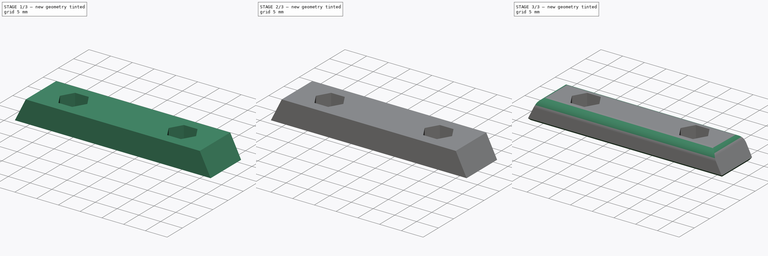
[diagram: build sequence overview — one tinted view per stage of 3, left to right]
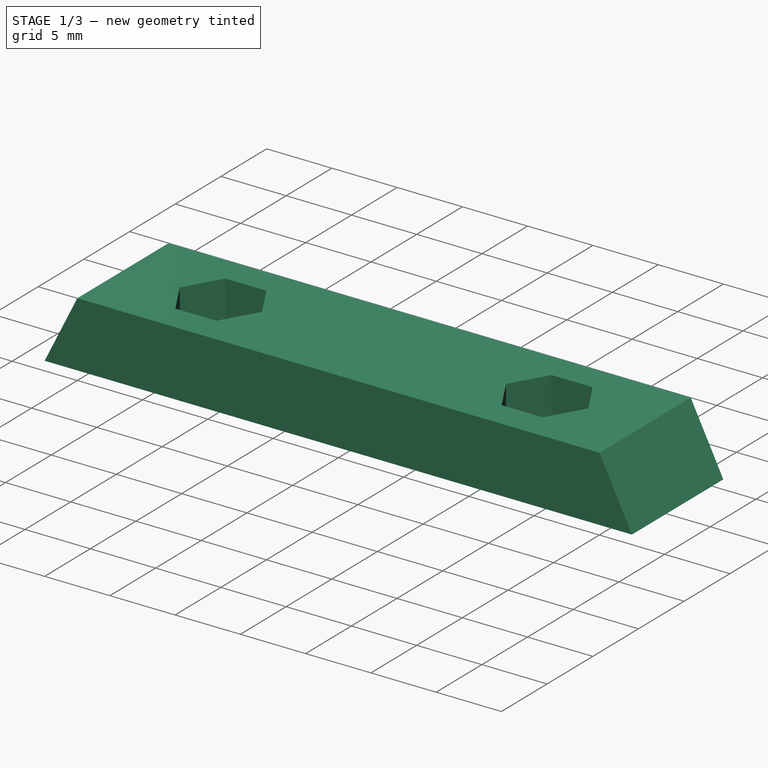
[diagram: stage 1 of 3 — iso view after this stage's code; geometry added in this stage tinted green]
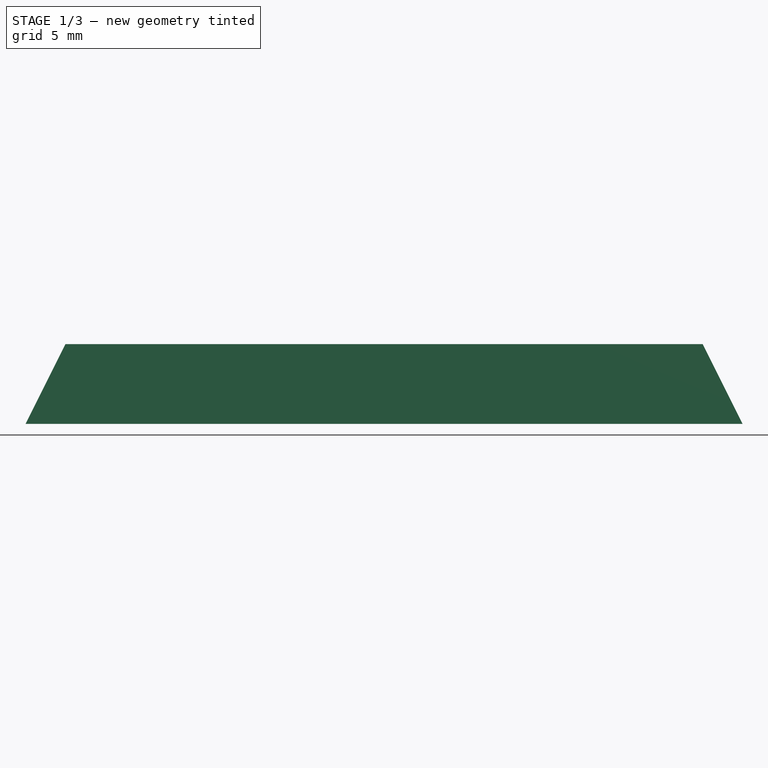
[diagram: stage 1 of 3 — front view after this stage's code; geometry added in this stage tinted green]
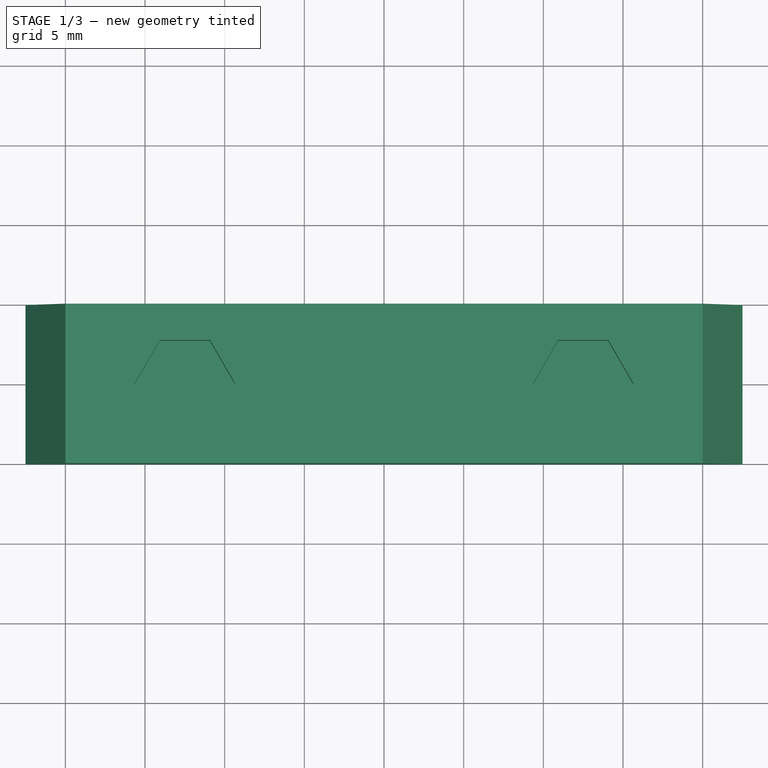
[diagram: stage 1 of 3 — top view after this stage's code; geometry added in this stage tinted green]
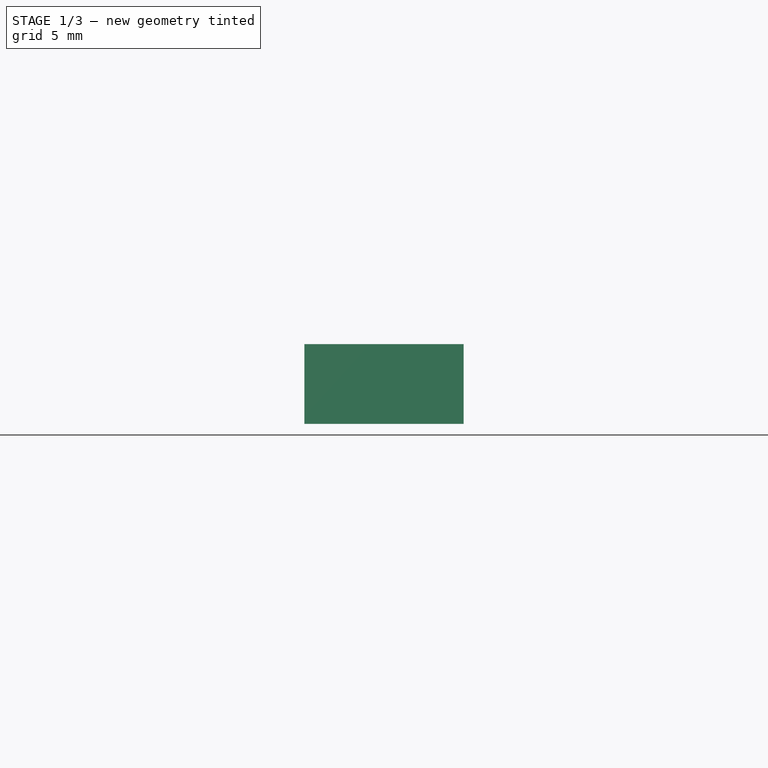
[diagram: stage 1 of 3 — right view after this stage's code; geometry added in this stage tinted green]
FCSTD DOCUMENT  (FreeCAD 0.16R6712 (Git))
Label: cacifo_trasera
License: CC-BY 3.0
LicenseURL: http://creativecommons.org/licenses/by/3.0/
objects: Sketcher::SketchObject×3, PartDesign::Pocket×2, PartDesign::Pad×1, PartDesign::Fillet×1, PartDesign::Chamfer×1
note: 11 computed .brp shape members not serialized (recipe doc carries the construction recipe); baked Part::Feature solids carry a one-line shape summary decoded from their .brp

FEATURE [Sketcher::SketchObject] Sketch
  Placement = pos=(0,0,0) rot=(1,0,0;1.5708rad)
  sketch-geometry (4):
    g0: LineSegment StartX=-22.5 StartY=0 StartZ=0 EndX=-20 EndY=5 EndZ=0
    g1: LineSegment StartX=-20 StartY=5 StartZ=0 EndX=20 EndY=5 EndZ=0
    g2: LineSegment StartX=20 StartY=5 StartZ=0 EndX=22.5 EndY=0 EndZ=0
    g3: LineSegment StartX=22.5 StartY=0 StartZ=0 EndX=-22.5 EndY=0 EndZ=0
  constraints (12):
    c: PointOnObject(g0,g-1)
    c: Coincident(g0,g1)
    c: Horizontal(g1)
    c: Coincident(g1,g2)
    c: Coincident(g2,g3)
    c: Coincident(g3,g0)
    c: Horizontal(g3)
    c: Symmetric(g0,g2,g-2)
    c: Symmetric(g0,g1,g-2)
    c: DistanceX(g3) = -45
    c: DistanceX(g1) = 40
    c: DistanceY(g-1,g0) = 5
FEATURE [PartDesign::Pad] Pad
  Length = 10
  Length2 = 100
  Midplane = true
  Placement = pos=(0,0,0) rot=(1,0,0;1.5708rad)
  Sketch = -> Sketch
  Type = 0
FEATURE [Sketcher::SketchObject] Sketch001
  Placement = pos=(0,0,5) rot=(0,0,1;3.14159rad)
  Support = -> Pad [Face2]
  sketch-geometry (14):
    g0: Circle [constr] CenterX=-12.5 CenterY=0 CenterZ=0 NormalX=0 NormalY=0 NormalZ=1 Radius=3.15
    g1: LineSegment StartX=-14.075 StartY=2.72798 StartZ=0 EndX=-10.925 EndY=2.72798 EndZ=0
    g2: LineSegment StartX=-10.925 StartY=2.72798 StartZ=0 EndX=-9.35 EndY=0 EndZ=0
    g3: LineSegment StartX=-9.35 StartY=0 StartZ=0 EndX=-10.925 EndY=-2.72798 EndZ=0
    g4: LineSegment StartX=-10.925 StartY=-2.72798 StartZ=0 EndX=-14.075 EndY=-2.72798 EndZ=0
    g5: LineSegment StartX=-14.075 StartY=-2.72798 StartZ=0 EndX=-15.65 EndY=0 EndZ=0
    g6: LineSegment StartX=-15.65 StartY=0 StartZ=0 EndX=-14.075 EndY=2.72798 EndZ=0
    g7: Circle [constr] CenterX=12.5 CenterY=0 CenterZ=0 NormalX=0 NormalY=0 NormalZ=1 Radius=3.15
    g8: LineSegment StartX=10.925 StartY=2.72798 StartZ=0 EndX=14.075 EndY=2.72798 EndZ=0
    g9: LineSegment StartX=14.075 StartY=2.72798 StartZ=0 EndX=15.65 EndY=0 EndZ=0
    g10: LineSegment StartX=15.65 StartY=0 StartZ=0 EndX=14.075 EndY=-2.72798 EndZ=0
    g11: LineSegment StartX=14.075 StartY=-2.72798 StartZ=0 EndX=10.925 EndY=-2.72798 EndZ=0
    g12: LineSegment StartX=10.925 StartY=-2.72798 StartZ=0 EndX=9.35 EndY=0 EndZ=0
    g13: LineSegment StartX=9.35 StartY=0 StartZ=0 EndX=10.925 EndY=2.72798 EndZ=0
  constraints (43):
    c: PointOnObject(g1,g0)
    c: Coincident(g1,g2)
    c: Coincident(g2,g3)
    c: Coincident(g3,g4)
    c: Horizontal(g4)
    c: Coincident(g4,g5)
    c: Coincident(g5,g6)
    c: Coincident(g6,g1)
    c: Horizontal(g1)
    c: PointOnObject(g2,g0)
    c: PointOnObject(g5,g0)
    c: PointOnObject(g1,g0)
    c: PointOnObject(g3,g0)
    c: PointOnObject(g4,g0)
    c: Radius(g0) = 3.15
    c: Equal(g1,g6)
    c: Equal(g6,g5)
    c: Equal(g5,g4)
    c: Equal(g4,g3)
    c: Equal(g3,g2)
    c: Equal(g7,g0)
    c: Coincident(g8,g9)
    c: Coincident(g9,g10)
    c: Coincident(g10,g11)
    c: Coincident(g11,g12)
    c: Coincident(g12,g13)
    c: Coincident(g13,g8)
    c: Horizontal(g11)
    c: Horizontal(g8)
    c: PointOnObject(g8,g7)
    c: PointOnObject(g8,g7)
    c: PointOnObject(g11,g7)
    c: PointOnObject(g10,g7)
    c: PointOnObject(g9,g7)
    c: PointOnObject(g12,g7)
    c: Equal(g13,g12)
    c: Equal(g12,g8)
    c: Equal(g8,g11)
    c: Equal(g11,g10)
    c: Equal(g10,g9)
    c: Symmetric(g0,g7,g-2)
    c: DistanceX(g0,g7) = 25
    c: DistanceY(g-1,g0) = 0
FEATURE [PartDesign::Pocket] Pocket
  Length = 4
  Placement = pos=(0,0,0) rot=(1,0,0;1.5708rad)
  Sketch = -> Sketch001
  Type = 0
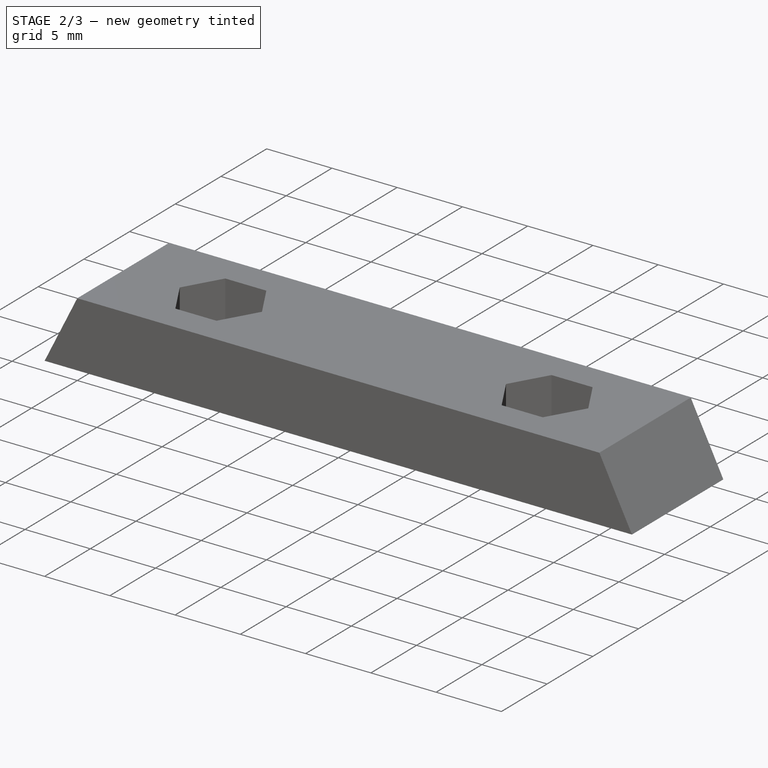
[diagram: stage 2 of 3 — iso view after this stage's code; geometry added in this stage tinted green]
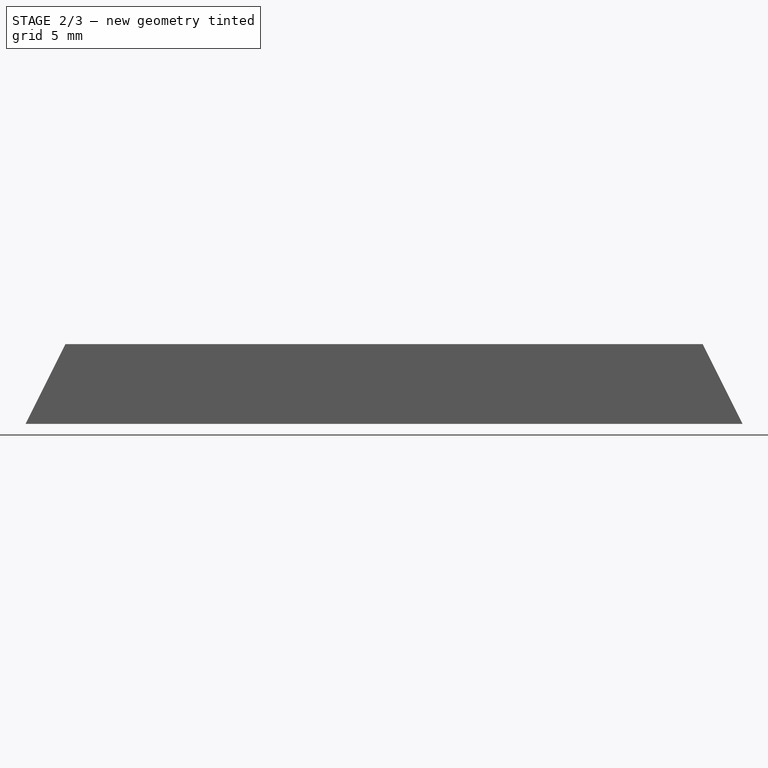
[diagram: stage 2 of 3 — front view after this stage's code; geometry added in this stage tinted green]
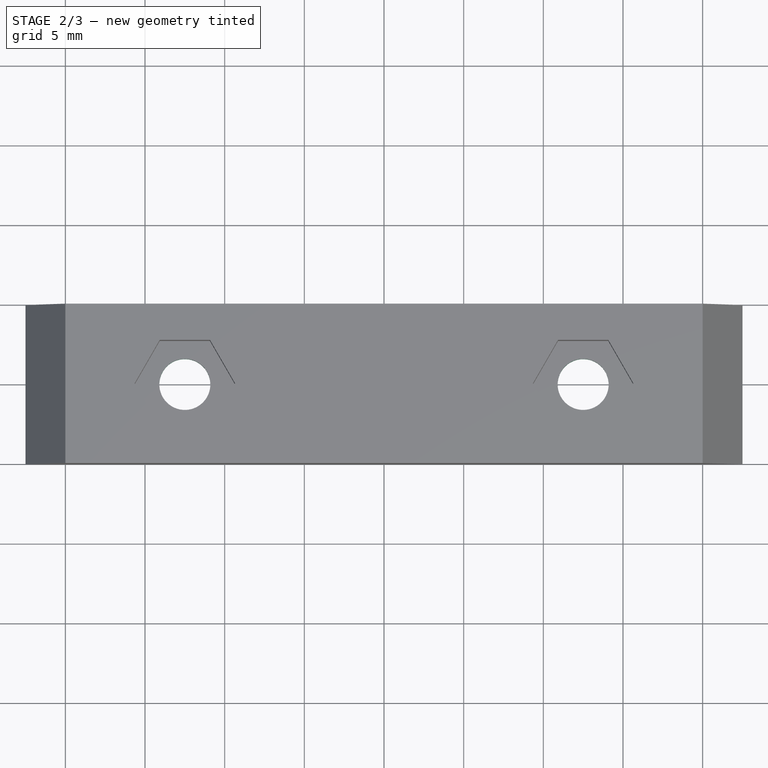
[diagram: stage 2 of 3 — top view after this stage's code; geometry added in this stage tinted green]
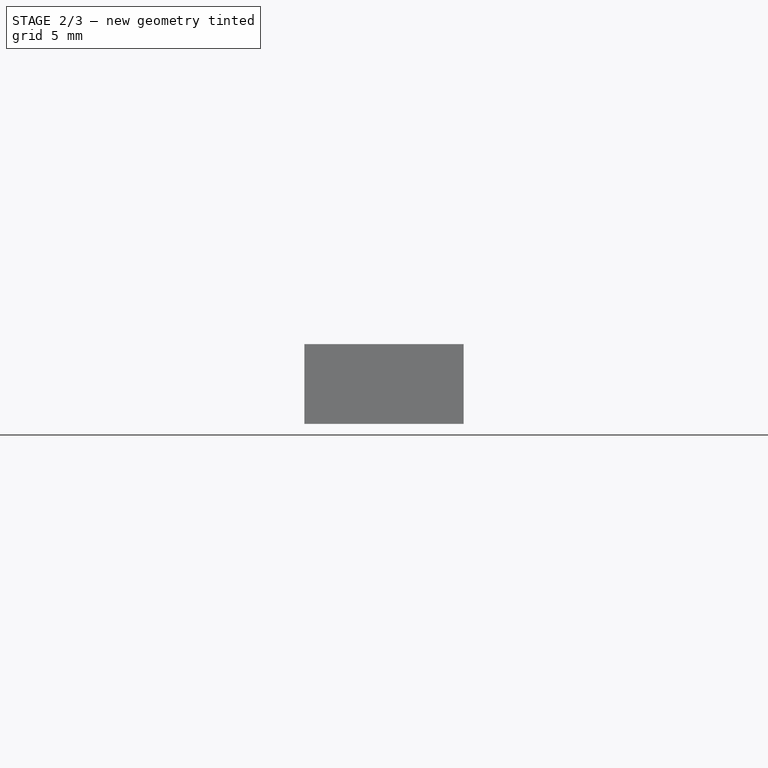
[diagram: stage 2 of 3 — right view after this stage's code; geometry added in this stage tinted green]
FEATURE [Sketcher::SketchObject] Sketch002
  Placement = pos=(0,0,0) rot=(1,0,0;3.14159rad)
  Support = -> Pocket [Face2]
  sketch-geometry (2):
    g0: Circle CenterX=-12.5 CenterY=0 CenterZ=0 NormalX=0 NormalY=0 NormalZ=1 Radius=1.6
    g1: Circle CenterX=12.5 CenterY=0 CenterZ=0 NormalX=0 NormalY=0 NormalZ=1 Radius=1.6
  constraints (5):
    c: Symmetric(g1,g0,g-2)
    c: DistanceX(g1,g0) = -25
    c: Equal(g0,g1)
    c: Radius(g0) = 1.6
    c: PointOnObject(g0,g-1)
FEATURE [PartDesign::Pocket] Pocket001
  Length = 5
  Placement = pos=(0,0,0) rot=(1,0,0;1.5708rad)
  Sketch = -> Sketch002
  Type = 0
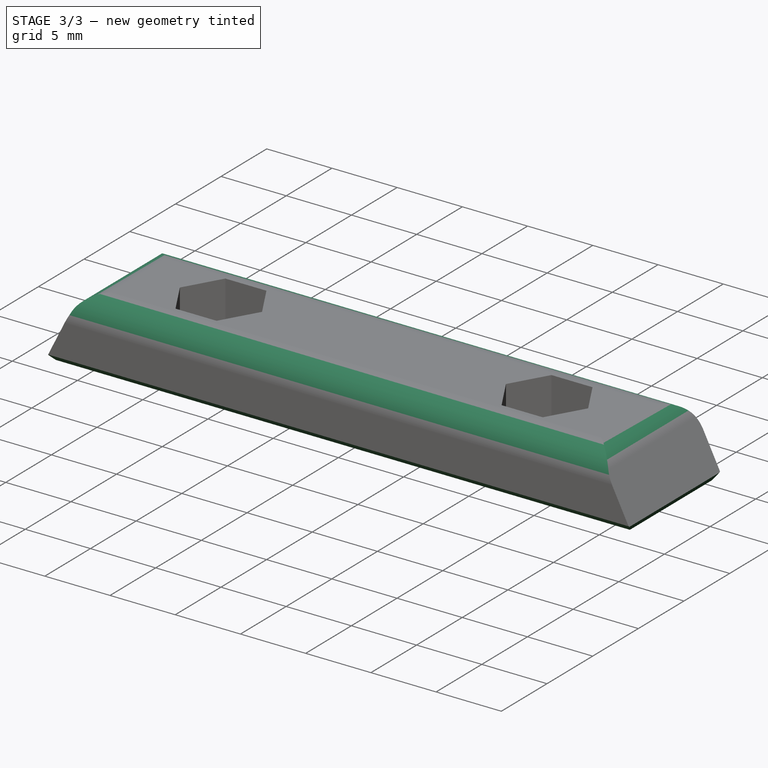
[diagram: stage 3 of 3 — iso view after this stage's code; geometry added in this stage tinted green]
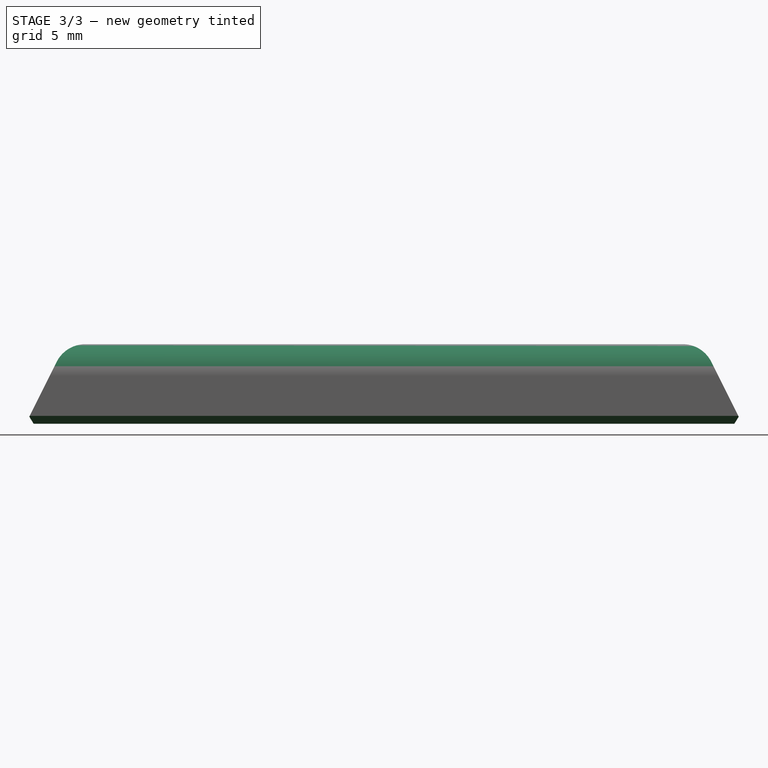
[diagram: stage 3 of 3 — front view after this stage's code; geometry added in this stage tinted green]
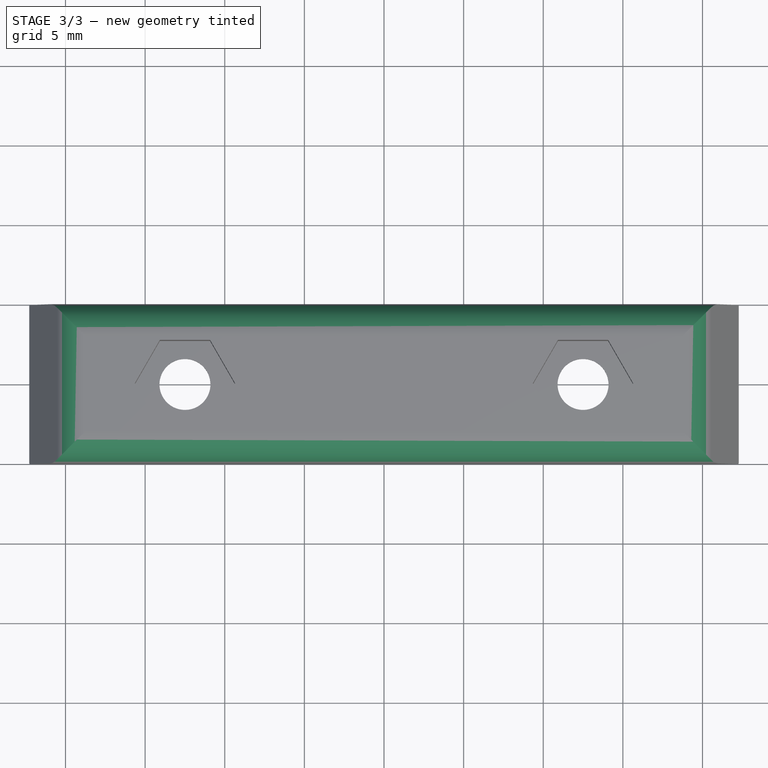
[diagram: stage 3 of 3 — top view after this stage's code; geometry added in this stage tinted green]
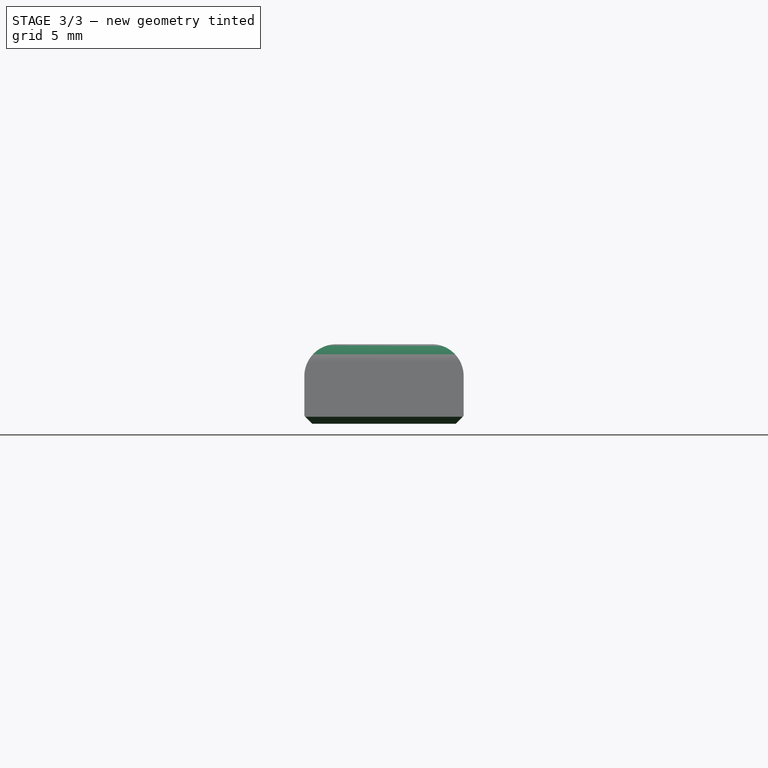
[diagram: stage 3 of 3 — right view after this stage's code; geometry added in this stage tinted green]
FEATURE [PartDesign::Fillet] Fillet
  Base = -> Pocket001 [Edge12,Edge2,Edge11,Edge10]
  Placement = pos=(0,0,0) rot=(1,0,0;1.5708rad)
  Radius = 2
FEATURE [PartDesign::Chamfer] Chamfer
  Base = -> Fillet [Edge14,Edge15,Edge16,Edge8,Edge17,Edge3]
  Placement = pos=(0,0,0) rot=(1,0,0;1.5708rad)
  Size = 0.5
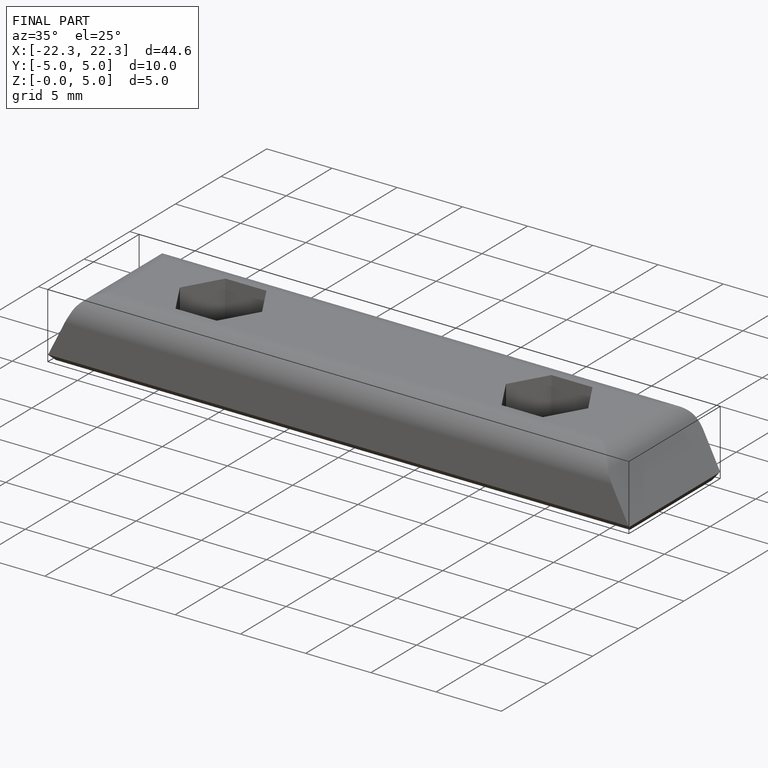
[diagram: finished part — iso view with bounding-box wireframe]
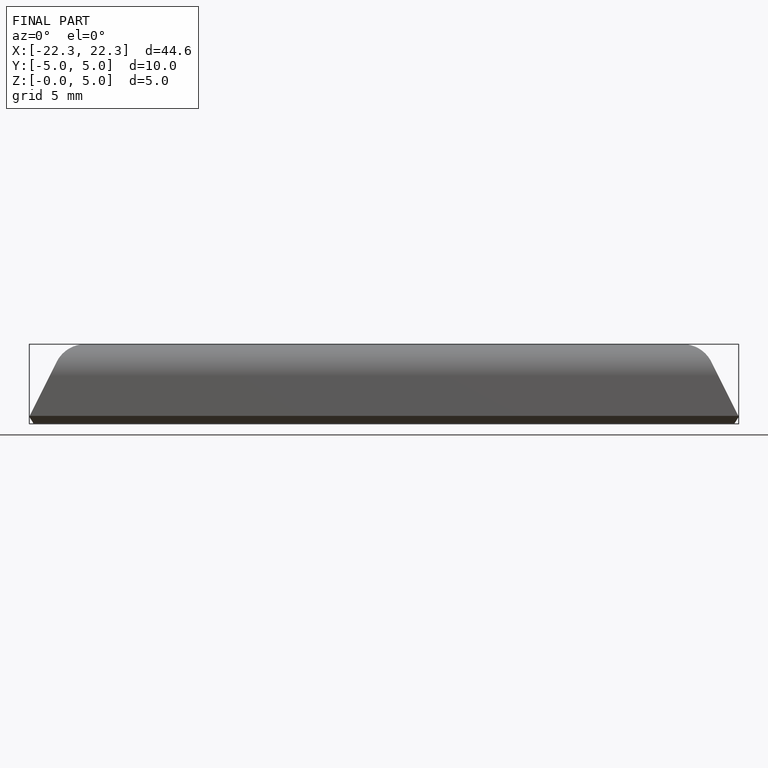
[diagram: finished part — front view with bounding-box wireframe]
